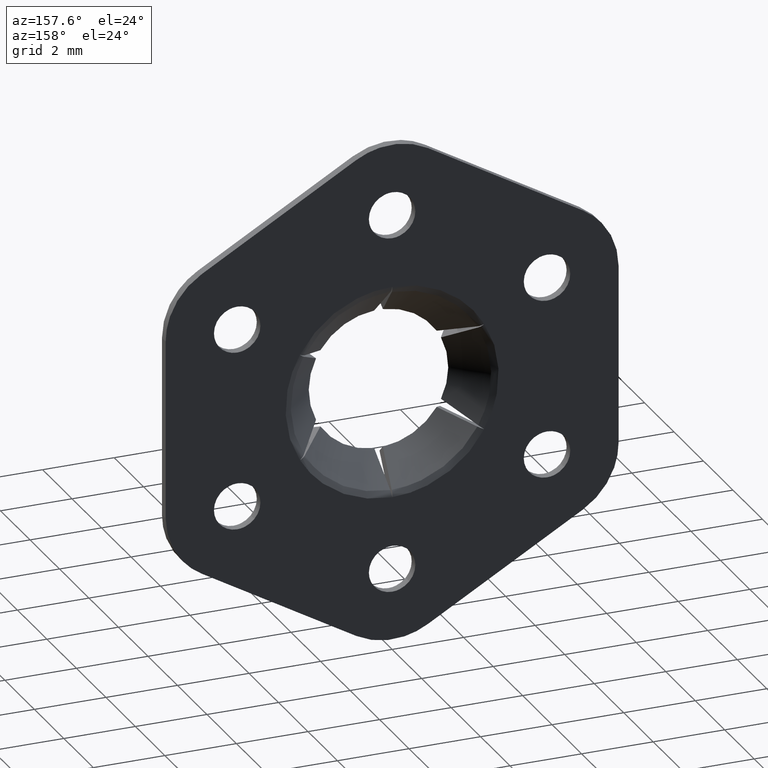
[diagram: clean part render]
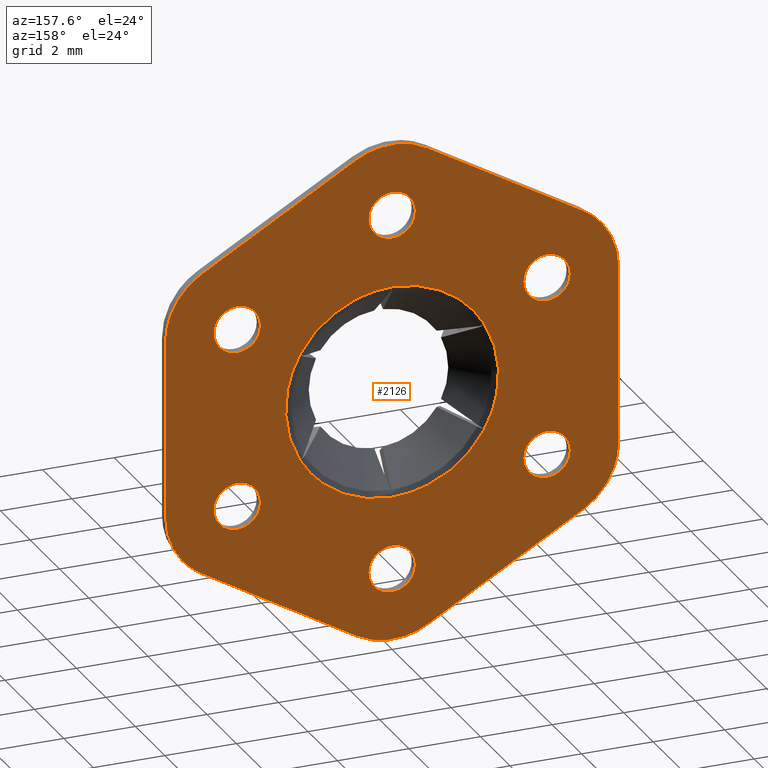
[diagram: same view with one face highlighted and labeled with its STEP entity id]
A machine part, auxiliary view. The second image highlights one B-rep face of the part: STEP entity #2126.
In plain terms, the highlighted face is a freeform B-spline surface patch.
Its self-contained STEP definition (entity closure, byte-faithful):
#23=CARTESIAN_POINT('',(4.980127018922179,0.0,2.500000163236781));
#24=VERTEX_POINT('',#23);
#25=CARTESIAN_POINT('',(4.809357311915749,2.035479E-012,2.939133668861077));
#26=VERTEX_POINT('',#25);
#27=CARTESIAN_POINT('',(4.980127018922179,0.0,2.500000163236781));
#28=CARTESIAN_POINT('',(4.980172819322952,3.259573E-013,2.570322075933524));
#29=CARTESIAN_POINT('',(4.964485724455772,7.681227E-013,2.665714664776037));
#30=CARTESIAN_POINT('',(4.904402876713827,1.460438E-012,2.815074539650879));
#31=CARTESIAN_POINT('',(4.853493884420349,1.812432E-012,2.891013563929832));
#32=CARTESIAN_POINT('',(4.809357311915749,2.035479E-012,2.939133668861077));
#33=B_SPLINE_CURVE_WITH_KNOTS('',3,(#27,#28,#29,#30,#31,#32),.UNSPECIFIED.,.F.,.U.,(4,1,1,4),(4.392452E-009,0.210942319725231,0.286274552754876,0.482149764923207),.UNSPECIFIED.);
#34=EDGE_CURVE('',#24,#26,#33,.T.);
#36=CARTESIAN_POINT('',(4.330127018922200,0.0,1.850000000000000));
#37=VERTEX_POINT('',#36);
#38=CARTESIAN_POINT('',(4.330127018922200,0.0,1.850000000000000));
#39=CARTESIAN_POINT('',(4.393943612441526,0.0,1.849973398800328));
#40=CARTESIAN_POINT('',(4.494964897387099,0.0,1.865001807567458));
#41=CARTESIAN_POINT('',(4.621336900206559,0.0,1.915552737009256));
#42=CARTESIAN_POINT('',(4.728475869426538,0.0,1.980653991998649));
#43=CARTESIAN_POINT('',(4.814836949278481,0.0,2.060874763959348));
#44=CARTESIAN_POINT('',(4.887248519578230,0.0,2.159794030874946));
#45=CARTESIAN_POINT('',(4.940725815325198,0.0,2.264407876457761));
#46=CARTESIAN_POINT('',(4.973543584710519,0.0,2.383007773683735));
#47=CARTESIAN_POINT('',(4.980127727920589,0.0,2.465434808204584));
#48=CARTESIAN_POINT('',(4.980127018922179,0.0,2.500000163236781));
#49=B_SPLINE_CURVE_WITH_KNOTS('',3,(#38,#39,#40,#41,#42,#43,#44,#45,#46,#47,#48),.UNSPECIFIED.,.F.,.U.,(4,1,1,1,1,1,1,1,4),(0.000000018778900,0.191440700863502,0.303117068795683,0.406816013105236,0.566344824788100,0.654092936143123,0.773744952453462,0.917326673894309,1.021024110873738),.UNSPECIFIED.);
#50=EDGE_CURVE('',#37,#24,#49,.T.);
#52=CARTESIAN_POINT('',(3.850896725928651,2.035479E-012,2.060866331138924));
#53=VERTEX_POINT('',#52);
#54=CARTESIAN_POINT('',(3.850896725928651,2.035479E-012,2.060866331138924));
#55=CARTESIAN_POINT('',(3.903943477723120,1.810169E-012,2.002870405256843));
#56=CARTESIAN_POINT('',(4.010944637113826,1.355693E-012,1.922072236097862));
#57=CARTESIAN_POINT('',(4.181378357821527,6.317940E-013,1.861167573291216));
#58=CARTESIAN_POINT('',(4.282414449593154,2.026540E-013,1.849993846030878));
#59=CARTESIAN_POINT('',(4.330127018922200,0.0,1.850000000000000));
#60=B_SPLINE_CURVE_WITH_KNOTS('',3,(#54,#55,#56,#57,#58,#59),.UNSPECIFIED.,.F.,.U.,(4,1,1,4),(5.974641E-009,0.235760169528303,0.395735542063126,0.538874181939689),.UNSPECIFIED.);
#61=EDGE_CURVE('',#53,#37,#60,.T.);
#134=CARTESIAN_POINT('',(4.330127018922200,0.0,3.150000000000000));
#135=VERTEX_POINT('',#134);
#136=CARTESIAN_POINT('',(4.809357311915749,2.035479E-012,2.939133668861077));
#137=CARTESIAN_POINT('',(4.771446997156005,1.874459E-012,2.980533101780329));
#138=CARTESIAN_POINT('',(4.699964367565766,1.570845E-012,3.040638557721811));
#139=CARTESIAN_POINT('',(4.590369526561397,1.105352E-012,3.098496102752863));
#140=CARTESIAN_POINT('',(4.473258317283968,6.079349E-013,3.138656828802147));
#141=CARTESIAN_POINT('',(4.386261561490840,2.384255E-013,3.150015921642574));
#142=CARTESIAN_POINT('',(4.330127018922200,0.0,3.150000000000000));
#143=B_SPLINE_CURVE_WITH_KNOTS('',3,(#136,#137,#138,#139,#140,#141,#142),.UNSPECIFIED.,.F.,.U.,(4,1,1,1,4),(5.974261E-009,0.168399101445964,0.277853834906452,0.370475086471678,0.538874181939691),.UNSPECIFIED.);
#144=EDGE_CURVE('',#26,#135,#143,.T.);
#184=CARTESIAN_POINT('',(3.680127018922221,0.0,2.499999836763220));
#185=VERTEX_POINT('',#184);
#186=CARTESIAN_POINT('',(3.680127018922221,0.0,2.499999836763220));
#187=CARTESIAN_POINT('',(3.680106001692644,2.677302E-013,2.442239826261723));
#188=CARTESIAN_POINT('',(3.692262500810855,6.867047E-013,2.351850442512182));
#189=CARTESIAN_POINT('',(3.746296559510227,1.390556E-012,2.200001804799360));
#190=CARTESIAN_POINT('',(3.803353804868452,1.795307E-012,2.112681030982155));
#191=CARTESIAN_POINT('',(3.850896725928651,2.035479E-012,2.060866331138924));
#192=B_SPLINE_CURVE_WITH_KNOTS('',3,(#186,#187,#188,#189,#190,#191),.UNSPECIFIED.,.F.,.U.,(4,1,1,4),(4.392489E-009,0.173272925132469,0.271207449585831,0.482149764923206),.UNSPECIFIED.);
#193=EDGE_CURVE('',#185,#53,#192,.T.);
#195=CARTESIAN_POINT('',(4.330127018922200,0.0,3.150000000000000));
#196=CARTESIAN_POINT('',(4.253012110528252,0.0,3.150052292918591));
#197=CARTESIAN_POINT('',(4.125424731724087,0.0,3.127021063610469));
#198=CARTESIAN_POINT('',(3.975257293904753,0.0,3.050239969148003));
#199=CARTESIAN_POINT('',(3.856999354344619,0.0,2.954418660074545));
#200=CARTESIAN_POINT('',(3.770135159362533,0.0,2.841682039234107));
#201=CARTESIAN_POINT('',(3.698821927363457,0.0,2.683438214227867));
#202=CARTESIAN_POINT('',(3.680084827560532,0.0,2.571796056926795));
#203=CARTESIAN_POINT('',(3.680127018922221,0.0,2.499999836763220));
#204=B_SPLINE_CURVE_WITH_KNOTS('',3,(#195,#196,#197,#198,#199,#200,#201,#202,#203),.UNSPECIFIED.,.F.,.U.,(4,1,1,1,1,1,4),(0.000000018782729,0.231325339214242,0.382884463216004,0.502540829995767,0.685998498556016,0.805652893126068,1.021024110873722),.UNSPECIFIED.);
#205=EDGE_CURVE('',#135,#185,#204,.T.);
#228=CARTESIAN_POINT('',(4.980127018922195,0.0,-2.499999836763219));
#229=VERTEX_POINT('',#228);
#230=CARTESIAN_POINT('',(4.809357311915765,2.035479E-012,-2.060866331138924));
#231=VERTEX_POINT('',#230);
#232=CARTESIAN_POINT('',(4.980127018922195,0.0,-2.499999836763219));
#233=CARTESIAN_POINT('',(4.980188991211064,3.608879E-013,-2.422142016910590));
#234=CARTESIAN_POINT('',(4.958205588266096,9.193818E-013,-2.301652757484972));
#235=CARTESIAN_POINT('',(4.886801284882448,1.590841E-012,-2.156792351033789));
#236=CARTESIAN_POINT('',(4.836504781183027,1.898182E-012,-2.090486817663585));
#237=CARTESIAN_POINT('',(4.809357311915765,2.035479E-012,-2.060866331138924));
#238=B_SPLINE_CURVE_WITH_KNOTS('',3,(#232,#233,#234,#235,#236,#237),.UNSPECIFIED.,.F.,.U.,(4,1,1,4),(4.392349E-009,0.233544237820783,0.361612322902816,0.482149764923206),.UNSPECIFIED.);
#239=EDGE_CURVE('',#229,#231,#238,.T.);
#241=CARTESIAN_POINT('',(4.330127018922216,0.0,-3.150000000000000));
#242=VERTEX_POINT('',#241);
#243=CARTESIAN_POINT('',(4.330127018922216,0.0,-3.150000000000000));
#244=CARTESIAN_POINT('',(4.393944221706852,0.0,-3.150027236263655));
#245=CARTESIAN_POINT('',(4.489645764979488,0.0,-3.135785352283381));
#246=CARTESIAN_POINT('',(4.623972305432466,0.0,-3.083967027925975));
#247=CARTESIAN_POINT('',(4.731015862469542,0.0,-3.018013549902450));
#248=CARTESIAN_POINT('',(4.836886102816760,0.0,-2.915974892477597));
#249=CARTESIAN_POINT('',(4.911389521383053,0.0,-2.801452350060326));
#250=CARTESIAN_POINT('',(4.966134807251615,0.0,-2.659521972923521));
#251=CARTESIAN_POINT('',(4.980151055046517,0.0,-2.561157209323600));
#252=CARTESIAN_POINT('',(4.980127018922195,0.0,-2.499999836763219));
#253=B_SPLINE_CURVE_WITH_KNOTS('',3,(#243,#244,#245,#246,#247,#248,#249,#250,#251,#252),.UNSPECIFIED.,.F.,.U.,(4,1,1,1,1,1,1,4),(0.000000018778407,0.191440700862996,0.287163830440622,0.430747980342440,0.566344824787957,0.725883285238950,0.837559397586677,1.021024110873739),.UNSPECIFIED.);
#254=EDGE_CURVE('',#242,#229,#253,.T.);
#256=CARTESIAN_POINT('',(3.850896725928668,2.035479E-012,-2.939133668861076));
#257=VERTEX_POINT('',#256);
#258=CARTESIAN_POINT('',(3.850896725928668,2.035479E-012,-2.939133668861076));
#259=CARTESIAN_POINT('',(3.879335850067438,1.914687E-012,-2.970174358639794));
#260=CARTESIAN_POINT('',(3.950659646301334,1.611747E-012,-3.034249271452272));
#261=CARTESIAN_POINT('',(4.061614121269874,1.140480E-012,-3.096557113811896));
#262=CARTESIAN_POINT('',(4.192608519233026,5.840951E-013,-3.139577012507993));
#263=CARTESIAN_POINT('',(4.276799714959488,2.265020E-013,-3.150012953154026));
#264=CARTESIAN_POINT('',(4.330127018922216,0.0,-3.150000000000000));
#265=B_SPLINE_CURVE_WITH_KNOTS('',3,(#258,#259,#260,#261,#262,#263,#264),.UNSPECIFIED.,.F.,.U.,(4,1,1,1,4),(5.975002E-009,0.126298454080897,0.286274548969578,0.378895637024377,0.538874181939689),.UNSPECIFIED.);
#266=EDGE_CURVE('',#257,#242,#265,.T.);
#339=CARTESIAN_POINT('',(4.330127018922216,0.0,-1.850000000000000));
#340=VERTEX_POINT('',#339);
#341=CARTESIAN_POINT('',(4.809357311915765,2.035479E-012,-2.060866331138924));
#342=CARTESIAN_POINT('',(4.777128134342178,1.898589E-012,-2.025684351089956));
#343=CARTESIAN_POINT('',(4.700630242010574,1.573673E-012,-1.958742133930721));
#344=CARTESIAN_POINT('',(4.540584141933095,8.938941E-013,-1.874230794345670));
#345=CARTESIAN_POINT('',(4.408723446698390,3.338299E-013,-1.849930178788505));
#346=CARTESIAN_POINT('',(4.330127018922216,0.0,-1.850000000000000));
#347=B_SPLINE_CURVE_WITH_KNOTS('',3,(#341,#342,#343,#344,#345,#346),.UNSPECIFIED.,.F.,.U.,(4,1,1,4),(5.975064E-009,0.143138645854867,0.303114018389503,0.538874181939690),.UNSPECIFIED.);
#348=EDGE_CURVE('',#231,#340,#347,.T.);
#388=CARTESIAN_POINT('',(3.680127018922236,0.0,-2.500000163236780));
#389=VERTEX_POINT('',#388);
#390=CARTESIAN_POINT('',(3.680127018922236,0.0,-2.500000163236780));
#391=CARTESIAN_POINT('',(3.680085536112750,3.259520E-013,-2.570320919348010));
#392=CARTESIAN_POINT('',(3.696176710327546,7.797703E-013,-2.668227508588785));
#393=CARTESIAN_POINT('',(3.757155085317206,1.470683E-012,-2.817284677752395));
#394=CARTESIAN_POINT('',(3.808458512756184,1.821012E-012,-2.892864622909406));
#395=CARTESIAN_POINT('',(3.850896725928668,2.035479E-012,-2.939133668861076));
#396=B_SPLINE_CURVE_WITH_KNOTS('',3,(#390,#391,#392,#393,#394,#395),.UNSPECIFIED.,.F.,.U.,(4,1,1,4),(4.392282E-009,0.210942319725159,0.293809630084970,0.482149764923209),.UNSPECIFIED.);
#397=EDGE_CURVE('',#389,#257,#396,.T.);
#399=CARTESIAN_POINT('',(4.330127018922216,0.0,-1.850000000000000));
#400=CARTESIAN_POINT('',(4.276947968822233,0.0,-1.849986830132845));
#401=CARTESIAN_POINT('',(4.173256557257727,0.0,-1.862797018575184));
#402=CARTESIAN_POINT('',(4.025544374374209,0.0,-1.918725037221774));
#403=CARTESIAN_POINT('',(3.910676844102262,0.0,-1.997541306760426));
#404=CARTESIAN_POINT('',(3.821831995039642,0.0,-2.089733238085434));
#405=CARTESIAN_POINT('',(3.758955769505115,0.0,-2.182594631143097));
#406=CARTESIAN_POINT('',(3.698375677283917,0.0,-2.319220316630406));
#407=CARTESIAN_POINT('',(3.680084592820350,0.0,-2.428203609653174));
#408=CARTESIAN_POINT('',(3.680127018922236,0.0,-2.500000163236780));
#409=B_SPLINE_CURVE_WITH_KNOTS('',3,(#399,#400,#401,#402,#403,#404,#405,#406,#407,#408),.UNSPECIFIED.,.F.,.U.,(4,1,1,1,1,1,1,4),(0.000000018783137,0.159534663353849,0.311094818722455,0.470630979926558,0.574325250557157,0.693976780803943,0.805652893126124,1.021024110873723),.UNSPECIFIED.);
#410=EDGE_CURVE('',#340,#389,#409,.T.);
#433=CARTESIAN_POINT('',(0.649999999999979,0.0,-4.999999836763220));
#434=VERTEX_POINT('',#433);
#435=CARTESIAN_POINT('',(0.479230292993549,2.035465E-012,-4.560866331138923));
#436=VERTEX_POINT('',#435);
#437=CARTESIAN_POINT('',(0.649999999999979,0.0,-4.999999836763220));
#438=CARTESIAN_POINT('',(0.650008423369615,2.211598E-013,-4.952286552478481));
#439=CARTESIAN_POINT('',(0.640000368785173,6.401693E-013,-4.861888951114753));
#440=CARTESIAN_POINT('',(0.589404509897320,1.351068E-012,-4.708518810954898));
#441=CARTESIAN_POINT('',(0.526768753002489,1.795285E-012,-4.612683037637351));
#442=CARTESIAN_POINT('',(0.479230292993549,2.035465E-012,-4.560866331138923));
#443=B_SPLINE_CURVE_WITH_KNOTS('',3,(#437,#438,#439,#440,#441,#442),.UNSPECIFIED.,.F.,.U.,(4,1,1,4),(4.392297E-009,0.143138701154913,0.271207449585726,0.482149764923210),.UNSPECIFIED.);
#444=EDGE_CURVE('',#434,#436,#443,.T.);
#446=CARTESIAN_POINT('',(0.0,0.0,-5.650000000000000));
#447=VERTEX_POINT('',#446);
#448=CARTESIAN_POINT('',(0.0,0.0,-5.650000000000000));
#449=CARTESIAN_POINT('',(0.063815023284216,0.0,-5.650025220793563));
#450=CARTESIAN_POINT('',(0.178135011454107,0.0,-5.633027580866302));
#451=CARTESIAN_POINT('',(0.318008146574790,0.0,-5.572039856208310));
#452=CARTESIAN_POINT('',(0.431467628535057,0.0,-5.492130598800961));
#453=CARTESIAN_POINT('',(0.525005459434568,0.0,-5.392680538057301));
#454=CARTESIAN_POINT('',(0.589656439504286,0.0,-5.281737603308858));
#455=CARTESIAN_POINT('',(0.637139277810600,0.0,-5.151543854778184));
#456=CARTESIAN_POINT('',(0.650027430911220,0.0,-5.061158381440956));
#457=CARTESIAN_POINT('',(0.649999999999979,0.0,-4.999999836763220));
#458=B_SPLINE_CURVE_WITH_KNOTS('',3,(#448,#449,#450,#451,#452,#453,#454,#455,#456,#457),.UNSPECIFIED.,.F.,.U.,(4,1,1,1,1,1,1,4),(0.000000018780778,0.191440700864921,0.343000770743689,0.454679515621571,0.606229140899984,0.749814273445504,0.837559397586994,1.021024110873731),.UNSPECIFIED.);
#459=EDGE_CURVE('',#447,#434,#458,.T.);
#461=CARTESIAN_POINT('',(-0.479230292993549,2.035479E-012,-5.439133668861076));
#462=VERTEX_POINT('',#461);
#463=CARTESIAN_POINT('',(-0.479230292993549,2.035479E-012,-5.439133668861076));
#464=CARTESIAN_POINT('',(-0.437533501956871,1.858377E-012,-5.484679603358519));
#465=CARTESIAN_POINT('',(-0.365143888764122,1.550910E-012,-5.543943935924473));
#466=CARTESIAN_POINT('',(-0.242394443208511,1.029544E-012,-5.606732621160969));
#467=CARTESIAN_POINT('',(-0.129104804158366,5.483589E-013,-5.641520365397864));
#468=CARTESIAN_POINT('',(-0.042099367895529,1.788126E-013,-5.650004697425557));
#469=CARTESIAN_POINT('',(0.0,0.0,-5.650000000000000));
#470=B_SPLINE_CURVE_WITH_KNOTS('',3,(#463,#464,#465,#466,#467,#468,#469),.UNSPECIFIED.,.F.,.U.,(4,1,1,1,4),(5.974141E-009,0.185239017503932,0.277853834906387,0.412575733837094,0.538874181939693),.UNSPECIFIED.);
#471=EDGE_CURVE('',#462,#447,#470,.T.);
#543=CARTESIAN_POINT('',(0.0,0.0,-4.350000000000000));
#544=VERTEX_POINT('',#543);
#545=CARTESIAN_POINT('',(0.479230292993549,2.035465E-012,-4.560866331138923));
#546=CARTESIAN_POINT('',(0.433744479387006,1.842270E-012,-4.511177934205013));
#547=CARTESIAN_POINT('',(0.353789963164069,1.502674E-012,-4.447434111435795));
#548=CARTESIAN_POINT('',(0.223912161837360,9.510361E-013,-4.386233653128629));
#549=CARTESIAN_POINT('',(0.115072062710664,4.887527E-013,-4.356631448995800));
#550=CARTESIAN_POINT('',(0.036485893309442,1.549688E-013,-4.349997711731738));
#551=CARTESIAN_POINT('',(0.0,0.0,-4.350000000000000));
#552=B_SPLINE_CURVE_WITH_KNOTS('',3,(#545,#546,#547,#548,#549,#550,#551),.UNSPECIFIED.,.F.,.U.,(4,1,1,1,4),(5.974519E-009,0.202077918414338,0.303114018389373,0.429415638874715,0.538874181939691),.UNSPECIFIED.);
#553=EDGE_CURVE('',#436,#544,#552,.T.);
#592=CARTESIAN_POINT('',(-0.649999999999979,0.0,-5.000000163236780));
#593=VERTEX_POINT('',#592);
#594=CARTESIAN_POINT('',(-0.649999999999979,0.0,-5.000000163236780));
#595=CARTESIAN_POINT('',(-0.650033184268499,3.026598E-013,-5.065295876135430));
#596=CARTESIAN_POINT('',(-0.633583754002724,8.030753E-013,-5.173255321991309));
#597=CARTESIAN_POINT('',(-0.570713157688592,1.492604E-012,-5.322013891884883));
#598=CARTESIAN_POINT('',(-0.514866278549661,1.855293E-012,-5.400260427522060));
#599=CARTESIAN_POINT('',(-0.479230292993549,2.035479E-012,-5.439133668861076));
#600=B_SPLINE_CURVE_WITH_KNOTS('',3,(#594,#595,#596,#597,#598,#599),.UNSPECIFIED.,.F.,.U.,(4,1,1,4),(4.392399E-009,0.195875216556383,0.323943787210634,0.482149764923208),.UNSPECIFIED.);
#601=EDGE_CURVE('',#593,#462,#600,.T.);
#603=CARTESIAN_POINT('',(0.0,0.0,-4.350000000000000));
#604=CARTESIAN_POINT('',(-0.066476968338233,0.0,-4.349966005813619));
#605=CARTESIAN_POINT('',(-0.180786130894938,0.0,-4.367701652183531));
#606=CARTESIAN_POINT('',(-0.334870591114025,0.0,-4.435993857622627));
#607=CARTESIAN_POINT('',(-0.445731268075669,0.0,-4.520351508365737));
#608=CARTESIAN_POINT('',(-0.531139021337826,0.0,-4.619376146311014));
#609=CARTESIAN_POINT('',(-0.589562915414088,0.0,-4.718216757957176));
#610=CARTESIAN_POINT('',(-0.636986426192101,0.0,-4.845794169785260));
#611=CARTESIAN_POINT('',(-0.650019989913678,0.0,-4.941502689056970));
#612=CARTESIAN_POINT('',(-0.649999999999979,0.0,-5.000000163236780));
#613=B_SPLINE_CURVE_WITH_KNOTS('',3,(#603,#604,#605,#606,#607,#608,#609,#610,#611,#612),.UNSPECIFIED.,.F.,.U.,(4,1,1,1,1,1,1,4),(0.000000018781896,0.199418732907885,0.343000770744471,0.502540829995531,0.614209504559535,0.733860823468435,0.845537679811663,1.021024110873731),.UNSPECIFIED.);
#614=EDGE_CURVE('',#544,#593,#613,.T.);
#637=CARTESIAN_POINT('',(-3.680127018922221,0.0,-2.499999836763220));
#638=VERTEX_POINT('',#637);
#639=CARTESIAN_POINT('',(-3.850896725928651,2.035479E-012,-2.060866331138924));
#640=VERTEX_POINT('',#639);
#641=CARTESIAN_POINT('',(-3.680127018922221,0.0,-2.499999836763220));
#642=CARTESIAN_POINT('',(-3.680120197715320,2.211603E-013,-2.452286807683829));
#643=CARTESIAN_POINT('',(-3.690679252235329,6.634583E-013,-2.356865607516550));
#644=CARTESIAN_POINT('',(-3.743114345620196,1.372439E-012,-2.203910491937008));
#645=CARTESIAN_POINT('',(-3.806762249965601,1.812434E-012,-2.108986151738037));
#646=CARTESIAN_POINT('',(-3.850896725928651,2.035479E-012,-2.060866331138924));
#647=B_SPLINE_CURVE_WITH_KNOTS('',3,(#641,#642,#643,#644,#645,#646),.UNSPECIFIED.,.F.,.U.,(4,1,1,4),(4.392420E-009,0.143138701154989,0.286274552754879,0.482149764923205),.UNSPECIFIED.);
#648=EDGE_CURVE('',#638,#640,#647,.T.);
#650=CARTESIAN_POINT('',(-4.330127018922200,0.0,-3.150000000000000));
#651=VERTEX_POINT('',#650);
#652=CARTESIAN_POINT('',(-4.330127018922200,0.0,-3.150000000000000));
#653=CARTESIAN_POINT('',(-4.279607870487335,0.0,-3.150010929741651));
#654=CARTESIAN_POINT('',(-4.191869006585980,0.0,-3.139717453321052));
#655=CARTESIAN_POINT('',(-4.080372376814060,0.0,-3.102879846466941));
#656=CARTESIAN_POINT('',(-3.978326219839794,0.0,-3.050734750072447));
#657=CARTESIAN_POINT('',(-3.886784709680978,0.0,-2.981081186481494));
#658=CARTESIAN_POINT('',(-3.791313408358248,0.0,-2.873126579718929));
#659=CARTESIAN_POINT('',(-3.705912729692541,0.0,-2.717990320102046));
#660=CARTESIAN_POINT('',(-3.680055050626259,0.0,-2.579776294634421));
#661=CARTESIAN_POINT('',(-3.680127018922221,0.0,-2.499999836763220));
#662=B_SPLINE_CURVE_WITH_KNOTS('',3,(#652,#653,#654,#655,#656,#657,#658,#659,#660,#661),.UNSPECIFIED.,.F.,.U.,(4,1,1,1,1,1,1,4),(0.000000018782525,0.151555804448762,0.263232972859720,0.350979503587851,0.494563003337421,0.606229140900759,0.781721904916428,1.021024110873723),.UNSPECIFIED.);
#663=EDGE_CURVE('',#651,#638,#662,.T.);
#665=CARTESIAN_POINT('',(-4.809357311915749,2.035465E-012,-2.939133668861077));
#666=VERTEX_POINT('',#665);
#667=CARTESIAN_POINT('',(-4.809357311915749,2.035465E-012,-2.939133668861077));
#668=CARTESIAN_POINT('',(-4.777128275683619,1.898576E-012,-2.974315582746929));
#669=CARTESIAN_POINT('',(-4.698504745374192,1.564634E-012,-3.043118532689795));
#670=CARTESIAN_POINT('',(-4.537787605668756,8.820097E-013,-3.126662181994866));
#671=CARTESIAN_POINT('',(-4.405912536548606,3.218886E-013,-3.150056702302393));
#672=CARTESIAN_POINT('',(-4.330127018922200,0.0,-3.150000000000000));
#673=B_SPLINE_CURVE_WITH_KNOTS('',3,(#667,#668,#669,#670,#671,#672),.UNSPECIFIED.,.F.,.U.,(4,1,1,4),(5.974327E-009,0.143138645854451,0.311535492394865,0.538874181939691),.UNSPECIFIED.);
#674=EDGE_CURVE('',#666,#651,#673,.T.);
#747=CARTESIAN_POINT('',(-4.330127018922200,0.0,-1.850000000000000));
#748=VERTEX_POINT('',#747);
#749=CARTESIAN_POINT('',(-3.850896725928651,2.035479E-012,-2.060866331138924));
#750=CARTESIAN_POINT('',(-3.896381758640699,1.842287E-012,-2.011177630675395));
#751=CARTESIAN_POINT('',(-3.985223026077269,1.464943E-012,-1.940350451292504));
#752=CARTESIAN_POINT('',(-4.150522116641677,7.628526E-013,-1.867614989655107));
#753=CARTESIAN_POINT('',(-4.262764076895192,2.861169E-013,-1.849964654666579));
#754=CARTESIAN_POINT('',(-4.330127018922200,0.0,-1.850000000000000));
#755=B_SPLINE_CURVE_WITH_KNOTS('',3,(#749,#750,#751,#752,#753,#754),.UNSPECIFIED.,.F.,.U.,(4,1,1,4),(5.975162E-009,0.202077918414613,0.336796269502777,0.538874181939690),.UNSPECIFIED.);
#756=EDGE_CURVE('',#640,#748,#755,.T.);
#797=CARTESIAN_POINT('',(-4.980127018922180,0.0,-2.500000163236780));
#798=VERTEX_POINT('',#797);
#799=CARTESIAN_POINT('',(-4.980127018922180,0.0,-2.500000163236780));
#800=CARTESIAN_POINT('',(-4.980135679931276,2.211592E-013,-2.547713318842952));
#801=CARTESIAN_POINT('',(-4.970679033841931,6.168839E-013,-2.633087418438984));
#802=CARTESIAN_POINT('',(-4.921927267359919,1.329719E-012,-2.786875319344228));
#803=CARTESIAN_POINT('',(-4.860296255959557,1.778140E-012,-2.883618237266349));
#804=CARTESIAN_POINT('',(-4.809357311915749,2.035465E-012,-2.939133668861077));
#805=B_SPLINE_CURVE_WITH_KNOTS('',3,(#799,#800,#801,#802,#803,#804),.UNSPECIFIED.,.F.,.U.,(4,1,1,4),(4.392199E-009,0.143138701154828,0.256140839540723,0.482149764923204),.UNSPECIFIED.);
#806=EDGE_CURVE('',#798,#666,#805,.T.);
#808=CARTESIAN_POINT('',(-4.330127018922200,0.0,-1.850000000000000));
#809=CARTESIAN_POINT('',(-4.383306040013327,0.0,-1.849986767140554));
#810=CARTESIAN_POINT('',(-4.486997860251977,0.0,-1.862796769441717));
#811=CARTESIAN_POINT('',(-4.614677171288983,0.0,-1.911145853098217));
#812=CARTESIAN_POINT('',(-4.716813316531903,0.0,-1.974092797651517));
#813=CARTESIAN_POINT('',(-4.801688610817760,0.0,-2.047299336767484));
#814=CARTESIAN_POINT('',(-4.873474157699417,0.0,-2.136994041059657));
#815=CARTESIAN_POINT('',(-4.930707750504640,0.0,-2.242505638592845));
#816=CARTESIAN_POINT('',(-4.970095934691418,0.0,-2.361740573988155));
#817=CARTESIAN_POINT('',(-4.980136328461938,0.0,-2.452139405650866));
#818=CARTESIAN_POINT('',(-4.980127018922180,0.0,-2.500000163236780));
#819=B_SPLINE_CURVE_WITH_KNOTS('',3,(#808,#809,#810,#811,#812,#813,#814,#815,#816,#817,#818),.UNSPECIFIED.,.F.,.U.,(4,1,1,1,1,1,1,1,4),(0.000000018778985,0.159534663350303,0.311094818719450,0.406816013104995,0.518483109550256,0.646113759268185,0.749814273444951,0.877443242281231,1.021024110873739),.UNSPECIFIED.);
#820=EDGE_CURVE('',#748,#798,#819,.T.);
#843=CARTESIAN_POINT('',(-3.680127018922221,0.0,2.500000163236781));
#844=VERTEX_POINT('',#843);
#845=CARTESIAN_POINT('',(-3.850896725928651,2.035479E-012,2.939133668861077));
#846=VERTEX_POINT('',#845);
#847=CARTESIAN_POINT('',(-3.680127018922221,0.0,2.500000163236781));
#848=CARTESIAN_POINT('',(-3.680126826250477,1.513162E-013,2.532645072831082));
#849=CARTESIAN_POINT('',(-3.686377334146418,5.354285E-013,2.615513294370316));
#850=CARTESIAN_POINT('',(-3.728976980823902,1.258953E-012,2.771606122981601));
#851=CARTESIAN_POINT('',(-3.798252913833863,1.769600E-012,2.881773027187848));
#852=CARTESIAN_POINT('',(-3.850896725928651,2.035479E-012,2.939133668861077));
#853=B_SPLINE_CURVE_WITH_KNOTS('',3,(#847,#848,#849,#850,#851,#852),.UNSPECIFIED.,.F.,.U.,(4,1,1,4),(4.392171E-009,0.097936187891378,0.248605531491666,0.482149764923208),.UNSPECIFIED.);
#854=EDGE_CURVE('',#844,#846,#853,.T.);
#856=CARTESIAN_POINT('',(-4.330127018922200,0.0,1.850000000000000));
#857=VERTEX_POINT('',#856);
#858=CARTESIAN_POINT('',(-4.330127018922200,0.0,1.850000000000000));
#859=CARTESIAN_POINT('',(-4.263650866062014,0.0,1.849968642827356));
#860=CARTESIAN_POINT('',(-4.149338525907311,0.0,1.867696297463179));
#861=CARTESIAN_POINT('',(-4.005044644144509,0.0,1.931664824281779));
#862=CARTESIAN_POINT('',(-3.903278858481713,0.0,2.005229781451142));
#863=CARTESIAN_POINT('',(-3.814421207603776,0.0,2.097410736793984));
#864=CARTESIAN_POINT('',(-3.747904164604107,0.0,2.201039387735926));
#865=CARTESIAN_POINT('',(-3.694122191726409,0.0,2.340479684443622));
#866=CARTESIAN_POINT('',(-3.680101512605011,0.0,2.438841924900070));
#867=CARTESIAN_POINT('',(-3.680127018922221,0.0,2.500000163236781));
#868=B_SPLINE_CURVE_WITH_KNOTS('',3,(#858,#859,#860,#861,#862,#863,#864,#865,#866,#867),.UNSPECIFIED.,.F.,.U.,(4,1,1,1,1,1,1,4),(0.000000018782180,0.199418732908128,0.343000770744707,0.470630979926265,0.574325250556961,0.725883285240054,0.837559397587364,1.021024110873723),.UNSPECIFIED.);
#869=EDGE_CURVE('',#857,#844,#868,.T.);
#871=CARTESIAN_POINT('',(-4.809357311915749,2.035479E-012,2.060866331138924));
#872=VERTEX_POINT('',#871);
#873=CARTESIAN_POINT('',(-4.809357311915749,2.035479E-012,2.060866331138924));
#874=CARTESIAN_POINT('',(-4.780918328831833,1.914688E-012,2.029825117307011));
#875=CARTESIAN_POINT('',(-4.711691283715077,1.620653E-012,1.967638609732726));
#876=CARTESIAN_POINT('',(-4.596317942454747,1.130617E-012,1.901859249753321));
#877=CARTESIAN_POINT('',(-4.464841587395258,5.721857E-013,1.859626060517609));
#878=CARTESIAN_POINT('',(-4.377840560285528,2.026582E-013,1.849990627074593));
#879=CARTESIAN_POINT('',(-4.330127018922200,0.0,1.850000000000000));
#880=B_SPLINE_CURVE_WITH_KNOTS('',3,(#873,#874,#875,#876,#877,#878,#879),.UNSPECIFIED.,.F.,.U.,(4,1,1,1,4),(5.975279E-009,0.126298454081047,0.277853834906792,0.395735542063202,0.538874181939689),.UNSPECIFIED.);
#881=EDGE_CURVE('',#872,#857,#880,.T.);
#954=CARTESIAN_POINT('',(-4.330127018922200,0.0,3.150000000000000));
#955=VERTEX_POINT('',#954);
#956=CARTESIAN_POINT('',(-3.850896725928651,2.035479E-012,2.939133668861077));
#957=CARTESIAN_POINT('',(-3.879334965560501,1.914691E-012,2.970176083917153));
#958=CARTESIAN_POINT('',(-3.944371248524385,1.638456E-012,3.028589782805305));
#959=CARTESIAN_POINT('',(-4.046555630069245,1.204439E-012,3.088615450395728));
#960=CARTESIAN_POINT('',(-4.175777400174439,6.555835E-013,3.136694891180107));
#961=CARTESIAN_POINT('',(-4.268376988082884,2.622767E-013,3.150028507514003));
#962=CARTESIAN_POINT('',(-4.330127018922200,0.0,3.150000000000000));
#963=B_SPLINE_CURVE_WITH_KNOTS('',3,(#956,#957,#958,#959,#960,#961,#962),.UNSPECIFIED.,.F.,.U.,(4,1,1,1,4),(5.974615E-009,0.126298454080574,0.261020353009394,0.353635170413818,0.538874181939689),.UNSPECIFIED.);
#964=EDGE_CURVE('',#846,#955,#963,.T.);
#1004=CARTESIAN_POINT('',(-4.980127018922178,0.0,2.499999836763220));
#1005=VERTEX_POINT('',#1004);
#1006=CARTESIAN_POINT('',(-4.980127018922178,0.0,2.499999836763220));
#1007=CARTESIAN_POINT('',(-4.980195547271932,3.608961E-013,2.422140254405051));
#1008=CARTESIAN_POINT('',(-4.959572599330711,8.844606E-013,2.309186641384227));
#1009=CARTESIAN_POINT('',(-4.890813166576367,1.560529E-012,2.163331974958842));
#1010=CARTESIAN_POINT('',(-4.841598586654004,1.872450E-012,2.096038188109043));
#1011=CARTESIAN_POINT('',(-4.809357311915749,2.035479E-012,2.060866331138924));
#1012=B_SPLINE_CURVE_WITH_KNOTS('',3,(#1006,#1007,#1008,#1009,#1010,#1011),.UNSPECIFIED.,.F.,.U.,(4,1,1,4),(4.392259E-009,0.233544237820698,0.339011068156922,0.482149764923207),.UNSPECIFIED.);
#1013=EDGE_CURVE('',#1005,#872,#1012,.T.);
#1015=CARTESIAN_POINT('',(-4.330127018922200,0.0,3.150000000000000));
#1016=CARTESIAN_POINT('',(-4.407242709465164,0.0,3.150052028342836));
#1017=CARTESIAN_POINT('',(-4.529511509903621,0.0,3.127980459439501));
#1018=CARTESIAN_POINT('',(-4.666034542144919,0.0,3.060269019756666));
#1019=CARTESIAN_POINT('',(-4.758494670121150,0.0,2.992574038856256));
#1020=CARTESIAN_POINT('',(-4.826046235105982,0.0,2.924187714232144));
#1021=CARTESIAN_POINT('',(-4.888466218511553,0.0,2.837828617986040));
#1022=CARTESIAN_POINT('',(-4.935860625792469,0.0,2.745100863063282));
#1023=CARTESIAN_POINT('',(-4.971492771088585,0.0,2.627622820455112));
#1024=CARTESIAN_POINT('',(-4.980134342718316,0.0,2.545200840535139));
#1025=CARTESIAN_POINT('',(-4.980127018922178,0.0,2.499999836763220));
#1026=B_SPLINE_CURVE_WITH_KNOTS('',3,(#1015,#1016,#1017,#1018,#1019,#1020,#1021,#1022,#1023,#1024,#1025),.UNSPECIFIED.,.F.,.U.,(4,1,1,1,1,1,1,1,4),(0.000000018778769,0.231325339211331,0.366932439118636,0.454679515620350,0.574325250555249,0.654092936142978,0.773744952453397,0.885422419102923,1.021024110873738),.UNSPECIFIED.);
#1027=EDGE_CURVE('',#955,#1005,#1026,.T.);
#1050=CARTESIAN_POINT('',(0.649999999999980,0.0,5.000000163236781));
#1051=VERTEX_POINT('',#1050);
#1052=CARTESIAN_POINT('',(0.479230292993549,2.035465E-012,5.439133668861077));
#1053=VERTEX_POINT('',#1052);
#1054=CARTESIAN_POINT('',(0.649999999999980,0.0,5.000000163236781));
#1055=CARTESIAN_POINT('',(0.650024365932875,2.910107E-013,5.062783164530856));
#1056=CARTESIAN_POINT('',(0.636065064788106,7.332433E-013,5.158190935946337));
#1057=CARTESIAN_POINT('',(0.578513466442606,1.431082E-012,5.308743486198226));
#1058=CARTESIAN_POINT('',(0.523369458287285,1.812424E-012,5.391014690884476));
#1059=CARTESIAN_POINT('',(0.479230292993549,2.035465E-012,5.439133668861077));
#1060=B_SPLINE_CURVE_WITH_KNOTS('',3,(#1054,#1055,#1056,#1057,#1058,#1059),.UNSPECIFIED.,.F.,.U.,(4,1,1,4),(4.392152E-009,0.188340139232155,0.286274552754873,0.482149764923208),.UNSPECIFIED.);
#1061=EDGE_CURVE('',#1051,#1053,#1060,.T.);
#1063=CARTESIAN_POINT('',(0.0,0.0,4.350000000000000));
#1064=VERTEX_POINT('',#1063);
#1065=CARTESIAN_POINT('',(0.0,0.0,4.350000000000000));
#1066=CARTESIAN_POINT('',(0.053177560295465,0.0,4.349989854561512));
#1067=CARTESIAN_POINT('',(0.170171830864856,0.0,4.364424114815066));
#1068=CARTESIAN_POINT('',(0.304266780844533,0.0,4.419951630989249));
#1069=CARTESIAN_POINT('',(0.409689440748383,0.0,4.492319502981864));
#1070=CARTESIAN_POINT('',(0.501605546790641,0.0,4.577669600641325));
#1071=CARTESIAN_POINT('',(0.578389490959285,0.0,4.691071279793185));
#1072=CARTESIAN_POINT('',(0.636005787414621,0.0,4.840479450817742));
#1073=CARTESIAN_POINT('',(0.650024222587203,0.0,4.938842636945773));
#1074=CARTESIAN_POINT('',(0.649999999999980,0.0,5.000000163236781));
#1075=B_SPLINE_CURVE_WITH_KNOTS('',3,(#1065,#1066,#1067,#1068,#1069,#1070,#1071,#1072,#1073,#1074),.UNSPECIFIED.,.F.,.U.,(4,1,1,1,1,1,1,4),(0.000000018780601,0.159534663351783,0.350979503586620,0.430747980343689,0.542413522646361,0.725883285239581,0.837559397587032,1.021024110873731),.UNSPECIFIED.);
#1076=EDGE_CURVE('',#1064,#1051,#1075,.T.);
#1078=CARTESIAN_POINT('',(-0.479230292993549,2.035465E-012,4.560866331138923));
#1079=VERTEX_POINT('',#1078);
#1080=CARTESIAN_POINT('',(-0.479230292993549,2.035465E-012,4.560866331138923));
#1081=CARTESIAN_POINT('',(-0.431855231950183,1.834246E-012,4.509098629673009));
#1082=CARTESIAN_POINT('',(-0.351397730955659,1.492513E-012,4.445823775775156));
#1083=CARTESIAN_POINT('',(-0.221190501600817,9.394762E-013,4.385494038775574));
#1084=CARTESIAN_POINT('',(-0.115072563984752,4.887549E-013,4.356630043639954));
#1085=CARTESIAN_POINT('',(-0.036485734798186,1.549681E-013,4.349998291480172));
#1086=CARTESIAN_POINT('',(0.0,0.0,4.350000000000000));
#1087=B_SPLINE_CURVE_WITH_KNOTS('',3,(#1080,#1081,#1082,#1083,#1084,#1085,#1086),.UNSPECIFIED.,.F.,.U.,(4,1,1,1,4),(5.974857E-009,0.210499648724068,0.303114018389532,0.429415638874794,0.538874181939687),.UNSPECIFIED.);
#1088=EDGE_CURVE('',#1079,#1064,#1087,.T.);
#1161=CARTESIAN_POINT('',(0.0,0.0,5.650000000000000));
#1162=VERTEX_POINT('',#1161);
#1163=CARTESIAN_POINT('',(0.479230292993549,2.035465E-012,5.439133668861077));
#1164=CARTESIAN_POINT('',(0.443209485030934,1.882471E-012,5.478453744471652));
#1165=CARTESIAN_POINT('',(0.352826616197338,1.498582E-012,5.555519738729323));
#1166=CARTESIAN_POINT('',(0.188038762877972,7.986688E-013,5.631882540158014));
#1167=CARTESIAN_POINT('',(0.061746656172758,2.622604E-013,5.650017676695429));
#1168=CARTESIAN_POINT('',(0.0,0.0,5.650000000000000));
#1169=B_SPLINE_CURVE_WITH_KNOTS('',3,(#1163,#1164,#1165,#1166,#1167,#1168),.UNSPECIFIED.,.F.,.U.,(4,1,1,4),(5.974299E-009,0.159978550892040,0.353635170413704,0.538874181939692),.UNSPECIFIED.);
#1170=EDGE_CURVE('',#1053,#1162,#1169,.T.);
#1208=CARTESIAN_POINT('',(-0.649999999999979,0.0,4.999999836763220));
#1209=VERTEX_POINT('',#1208);
#1210=CARTESIAN_POINT('',(-0.649999999999979,0.0,4.999999836763220));
#1211=CARTESIAN_POINT('',(-0.650027744248675,2.910136E-013,4.937216220443998));
#1212=CARTESIAN_POINT('',(-0.636795585327057,7.099607E-013,4.846832087152782));
#1213=CARTESIAN_POINT('',(-0.581048631131039,1.410302E-012,4.695739740064787));
#1214=CARTESIAN_POINT('',(-0.526769508290147,1.795280E-012,4.612684102433181));
#1215=CARTESIAN_POINT('',(-0.479230292993549,2.035465E-012,4.560866331138923));
#1216=B_SPLINE_CURVE_WITH_KNOTS('',3,(#1210,#1211,#1212,#1213,#1214,#1215),.UNSPECIFIED.,.F.,.U.,(4,1,1,4),(4.392154E-009,0.188340139232062,0.271207449585650,0.482149764923206),.UNSPECIFIED.);
#1217=EDGE_CURVE('',#1209,#1079,#1216,.T.);
#1219=CARTESIAN_POINT('',(0.0,0.0,5.650000000000000));
#1220=CARTESIAN_POINT('',(-0.066476855568167,0.0,5.650035357390486));
#1221=CARTESIAN_POINT('',(-0.180787571138275,0.0,5.632299706067111));
#1222=CARTESIAN_POINT('',(-0.325080625015502,0.0,5.568334318963451));
#1223=CARTESIAN_POINT('',(-0.448515442741643,0.0,5.479131222491344));
#1224=CARTESIAN_POINT('',(-0.549526123246987,0.0,5.360573746149273));
#1225=CARTESIAN_POINT('',(-0.629520004743912,0.0,5.194073429725729));
#1226=CARTESIAN_POINT('',(-0.650045444535404,0.0,5.071795463557521));
#1227=CARTESIAN_POINT('',(-0.649999999999979,0.0,4.999999836763220));
#1228=B_SPLINE_CURVE_WITH_KNOTS('',3,(#1219,#1220,#1221,#1222,#1223,#1224,#1225,#1226,#1227),.UNSPECIFIED.,.F.,.U.,(4,1,1,1,1,1,4),(0.000000018780380,0.199418732906689,0.343000770743486,0.470630979925226,0.654092936143618,0.805652893125613,1.021024110873732),.UNSPECIFIED.);
#1229=EDGE_CURVE('',#1162,#1209,#1228,.T.);
#1378=CARTESIAN_POINT('',(2.842171E-014,0.0,-2.976776695317100));
#1379=VERTEX_POINT('',#1378);
#1389=CARTESIAN_POINT('',(-2.577964239538090,0.0,-1.488388347658600));
#1390=VERTEX_POINT('',#1389);
#1391=CARTESIAN_POINT('',(-2.577964239538090,0.0,-1.488388347658600));
#1392=CARTESIAN_POINT('',(-2.496794158254641,0.0,-1.628999916628731));
#1393=CARTESIAN_POINT('',(-2.311367414200901,0.0,-1.896890372156776));
#1394=CARTESIAN_POINT('',(-1.954515884414944,0.0,-2.265636327030067));
#1395=CARTESIAN_POINT('',(-1.564621626757128,0.0,-2.547449179401177));
#1396=CARTESIAN_POINT('',(-1.172211759670378,0.0,-2.744949089108115));
#1397=CARTESIAN_POINT('',(-0.788768863166515,0.0,-2.880388844008242));
#1398=CARTESIAN_POINT('',(-0.397777262392143,0.0,-2.959825615038944));
#1399=CARTESIAN_POINT('',(-0.121767575380713,0.0,-2.976778192879953));
#1400=CARTESIAN_POINT('',(2.842171E-014,0.0,-2.976776695317100));
#1401=B_SPLINE_CURVE_WITH_KNOTS('',3,(#1391,#1392,#1393,#1394,#1395,#1396,#1397,#1398,#1399,#1400),.UNSPECIFIED.,.F.,.U.,(4,1,1,1,1,1,1,4),(3.445439E-009,0.487074803019400,0.974151547385193,1.534289428408912,1.923945438625371,2.289253702563691,2.751977501904158,3.117281959204614),.UNSPECIFIED.);
#1402=EDGE_CURVE('',#1390,#1379,#1401,.T.);
#1434=CARTESIAN_POINT('',(2.577964239538090,0.0,-1.488388347658600));
#1435=VERTEX_POINT('',#1434);
#1445=CARTESIAN_POINT('',(2.842171E-014,0.0,-2.976776695317100));
#1446=CARTESIAN_POINT('',(0.227305666847590,0.0,-2.976825566480928));
#1447=CARTESIAN_POINT('',(0.600706142955520,0.0,-2.933786029945515));
#1448=CARTESIAN_POINT('',(1.105744102396960,0.0,-2.776052195049144));
#1449=CARTESIAN_POINT('',(1.500885712562122,0.0,-2.583199034411650));
#1450=CARTESIAN_POINT('',(1.822966694765787,0.0,-2.362216309752928));
#1451=CARTESIAN_POINT('',(2.116285767117679,0.0,-2.104987106230756));
#1452=CARTESIAN_POINT('',(2.364395778648193,0.0,-1.824398694265838));
#1453=CARTESIAN_POINT('',(2.517081713614732,0.0,-1.593842754995598));
#1454=CARTESIAN_POINT('',(2.577964239538090,0.0,-1.488388347658600));
#1455=B_SPLINE_CURVE_WITH_KNOTS('',3,(#1445,#1446,#1447,#1448,#1449,#1450,#1451,#1452,#1453,#1454),.UNSPECIFIED.,.F.,.U.,(4,1,1,1,1,1,1,4),(3.445334E-009,0.681904881034175,1.120274676729463,1.582992534240836,1.997007285920168,2.289253702563580,2.751977501904084,3.117281959204557),.UNSPECIFIED.);
#1456=EDGE_CURVE('',#1379,#1435,#1455,.T.);
#1816=CARTESIAN_POINT('',(-2.577964239538090,0.0,1.488388347658500));
#1817=VERTEX_POINT('',#1816);
#1826=CARTESIAN_POINT('',(-2.842171E-014,0.0,2.976776695317000));
#1827=VERTEX_POINT('',#1826);
#1828=CARTESIAN_POINT('',(-2.842171E-014,0.0,2.976776695317000));
#1829=CARTESIAN_POINT('',(-0.162358268389724,0.0,2.976787301583120));
#1830=CARTESIAN_POINT('',(-0.487072120239285,0.0,2.950148627740507));
#1831=CARTESIAN_POINT('',(-0.874221279230879,0.0,2.853175389372812));
#1832=CARTESIAN_POINT('',(-1.215812819318272,0.0,2.723002736379225));
#1833=CARTESIAN_POINT('',(-1.521011222492351,0.0,2.569381591252057));
#1834=CARTESIAN_POINT('',(-1.903505202637079,0.0,2.306988726703724));
#1835=CARTESIAN_POINT('',(-2.272775115985087,0.0,1.949600575582725));
#1836=CARTESIAN_POINT('',(-2.488680404135583,0.0,1.643062428337839));
#1837=CARTESIAN_POINT('',(-2.577964239538090,0.0,1.488388347658500));
#1838=B_SPLINE_CURVE_WITH_KNOTS('',3,(#1828,#1829,#1830,#1831,#1832,#1833,#1834,#1835,#1836,#1837),.UNSPECIFIED.,.F.,.U.,(4,1,1,1,1,1,1,4),(3.445156E-009,0.487074803019155,0.974151547385027,1.193336524024428,1.582992534240926,1.997007285920270,2.581500523054031,3.117281959204600),.UNSPECIFIED.);
#1839=EDGE_CURVE('',#1827,#1817,#1838,.T.);
#1896=CARTESIAN_POINT('',(-6.962506683600375,0.0,-7.699295341735565));
#1897=CARTESIAN_POINT('',(-6.962506683600375,0.0,7.699302226071983));
#1898=CARTESIAN_POINT('',(6.962507023174981,0.0,-7.699295341735565));
#1899=CARTESIAN_POINT('',(6.962507023174981,0.0,7.699302226071982));
#1900=B_SPLINE_SURFACE_WITH_KNOTS('',1,1,((#1896,#1898),(#1897,#1899)),.UNSPECIFIED.,.F.,.F.,.U.,(2,2),(2,2),(0.0,15.398597567807551),(0.0,13.925013706775360),.UNSPECIFIED.);
#1901=CARTESIAN_POINT('',(-1.000000000011730,0.0,-6.732050807589360));
#1902=VERTEX_POINT('',#1901);
#1903=CARTESIAN_POINT('',(-5.330127018933919,0.0,-4.232050807589370));
#1904=VERTEX_POINT('',#1903);
#1905=CARTESIAN_POINT('',(-1.000000000011730,0.0,-6.732050807589360));
#1906=CARTESIAN_POINT('',(-5.330127018933919,0.0,-4.232050807589370));
#1907=QUASI_UNIFORM_CURVE('',1,(#1905,#1906),.UNSPECIFIED.,.F.,.U.);
#1908=EDGE_CURVE('',#1902,#1904,#1907,.T.);
#1909=ORIENTED_EDGE('',*,*,#1908,.T.);
#1910=CARTESIAN_POINT('',(-6.330127018945720,0.0,-2.500000000000060));
#1911=VERTEX_POINT('',#1910);
#1912=CARTESIAN_POINT('',(-5.330127018933919,0.0,-4.232050807589370));
#1913=CARTESIAN_POINT('',(-5.448225157044525,0.0,-4.163892049832751));
#1914=CARTESIAN_POINT('',(-5.657045121985878,0.0,-4.012908258932766));
#1915=CARTESIAN_POINT('',(-5.934089623025550,0.0,-3.717151902362959));
#1916=CARTESIAN_POINT('',(-6.138470651597938,0.0,-3.385451213800490));
#1917=CARTESIAN_POINT('',(-6.291310928581919,0.0,-2.969031915415831));
#1918=CARTESIAN_POINT('',(-6.330186459580006,0.0,-2.674539303578565));
#1919=CARTESIAN_POINT('',(-6.330127018945720,0.0,-2.500000000000060));
#1920=B_SPLINE_CURVE_WITH_KNOTS('',3,(#1912,#1913,#1914,#1915,#1916,#1917,#1918,#1919),.UNSPECIFIED.,.F.,.U.,(4,1,1,1,1,4),(5.188001E-009,0.409061743000653,0.769038262707449,1.210824676532714,1.570800708899954,2.094400943239116),.UNSPECIFIED.);
#1921=EDGE_CURVE('',#1904,#1911,#1920,.T.);
#1922=ORIENTED_EDGE('',*,*,#1921,.T.);
#1923=CARTESIAN_POINT('',(-6.330127018945720,0.0,2.500000000000000));
#1924=VERTEX_POINT('',#1923);
#1925=CARTESIAN_POINT('',(-6.330127018945720,0.0,-2.500000000000060));
#1926=CARTESIAN_POINT('',(-6.330127018945720,0.0,2.500000000000000));
#1927=QUASI_UNIFORM_CURVE('',1,(#1925,#1926),.UNSPECIFIED.,.F.,.U.);
#1928=EDGE_CURVE('',#1911,#1924,#1927,.T.);
#1929=ORIENTED_EDGE('',*,*,#1928,.T.);
#1930=CARTESIAN_POINT('',(-5.330127018933919,0.0,4.232050807589310));
#1931=VERTEX_POINT('',#1930);
#1932=CARTESIAN_POINT('',(-6.330127018945720,0.0,2.500000000000000));
#1933=CARTESIAN_POINT('',(-6.330165244297612,0.0,2.658174778174313));
#1934=CARTESIAN_POINT('',(-6.301502271389820,0.0,2.898138309092708));
#1935=CARTESIAN_POINT('',(-6.203425603019198,0.0,3.216715721629216));
#1936=CARTESIAN_POINT('',(-6.073666401727644,0.0,3.500058493430569));
#1937=CARTESIAN_POINT('',(-5.903070921123648,0.0,3.748708219860237));
#1938=CARTESIAN_POINT('',(-5.651815232254331,0.0,4.014771660558204));
#1939=CARTESIAN_POINT('',(-5.467130610960203,0.0,4.152998029843333));
#1940=CARTESIAN_POINT('',(-5.330127018933919,0.0,4.232050807589310));
#1941=B_SPLINE_CURVE_WITH_KNOTS('',3,(#1932,#1933,#1934,#1935,#1936,#1937,#1938,#1939,#1940),.UNSPECIFIED.,.F.,.U.,(4,1,1,1,1,1,4),(5.187367E-009,0.474512415005693,0.719951237371907,0.998114824879852,1.407174229039371,1.619888625592596,2.094400943239118),.UNSPECIFIED.);
#1942=EDGE_CURVE('',#1924,#1931,#1941,.T.);
#1943=ORIENTED_EDGE('',*,*,#1942,.T.);
#1944=CARTESIAN_POINT('',(-1.000000000011680,0.0,6.732050807589340));
#1945=VERTEX_POINT('',#1944);
#1946=CARTESIAN_POINT('',(-5.330127018933919,0.0,4.232050807589310));
#1947=CARTESIAN_POINT('',(-1.000000000011680,0.0,6.732050807589340));
#1948=QUASI_UNIFORM_CURVE('',1,(#1946,#1947),.UNSPECIFIED.,.F.,.U.);
#1949=EDGE_CURVE('',#1931,#1945,#1948,.T.);
#1950=ORIENTED_EDGE('',*,*,#1949,.T.);
#1951=CARTESIAN_POINT('',(1.000000000011908,0.0,6.732050807589340));
#1952=VERTEX_POINT('',#1951);
#1953=CARTESIAN_POINT('',(-1.000000000011680,0.0,6.732050807589340));
#1954=CARTESIAN_POINT('',(-0.896089923528253,0.0,6.792056983461742));
#1955=CARTESIAN_POINT('',(-0.687364686092591,0.0,6.888674838553950));
#1956=CARTESIAN_POINT('',(-0.364920202743639,0.0,6.975078101733454));
#1957=CARTESIAN_POINT('',(-0.087375434562675,0.0,7.003553154138618));
#1958=CARTESIAN_POINT('',(0.180120512530251,0.0,6.996987477307311));
#1959=CARTESIAN_POINT('',(0.412738488830489,0.0,6.962480518735546));
#1960=CARTESIAN_POINT('',(0.701932799593575,0.0,6.881177410002462));
#1961=CARTESIAN_POINT('',(0.886644346817808,0.0,6.797515209005143));
#1962=CARTESIAN_POINT('',(1.000000000011908,0.0,6.732050807589340));
#1963=B_SPLINE_CURVE_WITH_KNOTS('',3,(#1953,#1954,#1955,#1956,#1957,#1958,#1959,#1960,#1961,#1962),.UNSPECIFIED.,.F.,.U.,(4,1,1,1,1,1,1,4),(5.188783E-009,0.359973898137977,0.687226706479652,0.998114824880749,1.194460075189109,1.488988157056018,1.701701177935181,2.094400943239074),.UNSPECIFIED.);
#1964=EDGE_CURVE('',#1945,#1952,#1963,.T.);
#1965=ORIENTED_EDGE('',*,*,#1964,.T.);
#1966=CARTESIAN_POINT('',(5.330127018934049,0.0,4.232050807589370));
#1967=VERTEX_POINT('',#1966);
#1968=CARTESIAN_POINT('',(1.000000000011908,0.0,6.732050807589340));
#1969=CARTESIAN_POINT('',(5.330127018934049,0.0,4.232050807589370));
#1970=QUASI_UNIFORM_CURVE('',1,(#1968,#1969),.UNSPECIFIED.,.F.,.U.);
#1971=EDGE_CURVE('',#1952,#1967,#1970,.T.);
#1972=ORIENTED_EDGE('',*,*,#1971,.T.);
#1973=CARTESIAN_POINT('',(6.330127018945849,0.0,2.500000000000065));
#1974=VERTEX_POINT('',#1973);
#1975=CARTESIAN_POINT('',(5.330127018934049,0.0,4.232050807589370));
#1976=CARTESIAN_POINT('',(5.415151208467154,0.0,4.182968221153647));
#1977=CARTESIAN_POINT('',(5.573424950575149,0.0,4.075318760750774));
#1978=CARTESIAN_POINT('',(5.803483757959756,0.0,3.865099013430287));
#1979=CARTESIAN_POINT('',(6.007751329444393,0.0,3.607731748732366));
#1980=CARTESIAN_POINT('',(6.166359177506542,0.0,3.313870882852847));
#1981=CARTESIAN_POINT('',(6.294194089586529,0.0,2.947216518521842));
#1982=CARTESIAN_POINT('',(6.330179150357305,0.0,2.674539256801447));
#1983=CARTESIAN_POINT('',(6.330127018945849,0.0,2.500000000000065));
#1984=B_SPLINE_CURVE_WITH_KNOTS('',3,(#1975,#1976,#1977,#1978,#1979,#1980,#1981,#1982,#1983),.UNSPECIFIED.,.F.,.U.,(4,1,1,1,1,1,4),(5.186652E-009,0.294523252914241,0.572688202441934,0.932663183616506,1.276274592191020,1.570800708899797,2.094400943239112),.UNSPECIFIED.);
#1985=EDGE_CURVE('',#1967,#1974,#1984,.T.);
#1986=ORIENTED_EDGE('',*,*,#1985,.T.);
#1987=CARTESIAN_POINT('',(6.330127018945849,0.0,-2.500000000000075));
#1988=VERTEX_POINT('',#1987);
#1989=CARTESIAN_POINT('',(6.330127018945849,0.0,2.500000000000065));
#1990=CARTESIAN_POINT('',(6.330127018945849,0.0,-2.500000000000075));
#1991=QUASI_UNIFORM_CURVE('',1,(#1989,#1990),.UNSPECIFIED.,.F.,.U.);
#1992=EDGE_CURVE('',#1974,#1988,#1991,.T.);
#1993=ORIENTED_EDGE('',*,*,#1992,.T.);
#1994=CARTESIAN_POINT('',(5.330127018934039,0.0,-4.232050807589390));
#1995=VERTEX_POINT('',#1994);
#1996=CARTESIAN_POINT('',(6.330127018945849,0.0,-2.500000000000075));
#1997=CARTESIAN_POINT('',(6.330139380368895,0.0,-2.619991731268281));
#1998=CARTESIAN_POINT('',(6.308465071562547,0.0,-2.859970971756943));
#1999=CARTESIAN_POINT('',(6.219378528464693,0.0,-3.181925529448111));
#2000=CARTESIAN_POINT('',(6.103248575501452,0.0,-3.435427564317349));
#2001=CARTESIAN_POINT('',(5.972353219189301,0.0,-3.649820878714738));
#2002=CARTESIAN_POINT('',(5.837102104401974,0.0,-3.821674167387216));
#2003=CARTESIAN_POINT('',(5.625642269181534,0.0,-4.034878344752525));
#2004=CARTESIAN_POINT('',(5.457677322474982,0.0,-4.158443470496222));
#2005=CARTESIAN_POINT('',(5.330127018934039,0.0,-4.232050807589390));
#2006=B_SPLINE_CURVE_WITH_KNOTS('',3,(#1996,#1997,#1998,#1999,#2000,#2001,#2002,#2003,#2004,#2005),.UNSPECIFIED.,.F.,.U.,(4,1,1,1,1,1,1,4),(5.189118E-009,0.359973898138103,0.719951237373071,0.998114824880801,1.194460075189200,1.472624969774113,1.652613260744698,2.094400943239110),.UNSPECIFIED.);
#2007=EDGE_CURVE('',#1988,#1995,#2006,.T.);
#2008=ORIENTED_EDGE('',*,*,#2007,.T.);
#2009=CARTESIAN_POINT('',(1.000000000011852,0.0,-6.732050807589371));
#2010=VERTEX_POINT('',#2009);
#2011=CARTESIAN_POINT('',(5.330127018934039,0.0,-4.232050807589390));
#2012=CARTESIAN_POINT('',(1.000000000011852,0.0,-6.732050807589371));
#2013=QUASI_UNIFORM_CURVE('',1,(#2011,#2012),.UNSPECIFIED.,.F.,.U.);
#2014=EDGE_CURVE('',#1995,#2010,#2013,.T.);
#2015=ORIENTED_EDGE('',*,*,#2014,.T.);
#2016=CARTESIAN_POINT('',(1.000000000011852,0.0,-6.732050807589371));
#2017=CARTESIAN_POINT('',(0.881922804481050,0.0,-6.800245942177253));
#2018=CARTESIAN_POINT('',(0.681782409625997,0.0,-6.889906708806564));
#2019=CARTESIAN_POINT('',(0.391160197827921,0.0,-6.966499784353431));
#2020=CARTESIAN_POINT('',(0.115010512113968,0.0,-7.004011637779616));
#2021=CARTESIAN_POINT('',(-0.175105048420943,0.0,-7.000455333615906));
#2022=CARTESIAN_POINT('',(-0.450026456850423,0.0,-6.953899251022217));
#2023=CARTESIAN_POINT('',(-0.722150535633103,0.0,-6.872565685772760));
#2024=CARTESIAN_POINT('',(-0.896090384038139,0.0,-6.792058304246559));
#2025=CARTESIAN_POINT('',(-1.000000000011730,0.0,-6.732050807589360));
#2026=B_SPLINE_CURVE_WITH_KNOTS('',3,(#2016,#2017,#2018,#2019,#2020,#2021,#2022,#2023,#2024,#2025),.UNSPECIFIED.,.F.,.U.,(4,1,1,1,1,1,1,4),(5.187448E-009,0.409061743000272,0.654500433890271,0.899940935716658,1.243547783489160,1.521712792207279,1.734427188760489,2.094400943239104),.UNSPECIFIED.);
#2027=EDGE_CURVE('',#2010,#1902,#2026,.T.);
#2028=ORIENTED_EDGE('',*,*,#2027,.T.);
#2029=EDGE_LOOP('',(#1909,#1922,#1929,#1943,#1950,#1965,#1972,#1986,#1993,#2008,#2015,#2028));
#2030=FACE_OUTER_BOUND('',#2029,.T.);
#2031=CARTESIAN_POINT('',(2.577964239538090,0.0,1.488388347658500));
#2032=VERTEX_POINT('',#2031);
#2033=CARTESIAN_POINT('',(2.577964239538090,0.0,1.488388347658500));
#2034=CARTESIAN_POINT('',(2.496795780550591,0.0,1.629001505693425));
#2035=CARTESIAN_POINT('',(2.357718902667164,0.0,1.829912479432453));
#2036=CARTESIAN_POINT('',(2.109005030451156,0.0,2.108876595251864));
#2037=CARTESIAN_POINT('',(1.861864589345311,0.0,2.332876682828946));
#2038=CARTESIAN_POINT('',(1.561772619186424,0.0,2.542390475704893));
#2039=CARTESIAN_POINT('',(1.231903127931128,0.0,2.718711048268938));
#2040=CARTESIAN_POINT('',(0.904924813106867,0.0,2.843306110309564));
#2041=CARTESIAN_POINT('',(0.487064588391114,0.0,2.947977838496184));
#2042=CARTESIAN_POINT('',(0.194831795555618,0.0,2.976801619336136));
#2043=CARTESIAN_POINT('',(-2.842171E-014,0.0,2.976776695317000));
#2044=B_SPLINE_CURVE_WITH_KNOTS('',3,(#2033,#2034,#2035,#2036,#2037,#2038,#2039,#2040,#2041,#2042,#2043),.UNSPECIFIED.,.F.,.U.,(4,1,1,1,1,1,1,1,4),(3.445054E-009,0.487074803019089,0.730612724683906,1.120274676729502,1.485583745420352,1.826529710902855,2.240545858913899,2.532792525264799,3.117281959204664),.UNSPECIFIED.);
#2045=EDGE_CURVE('',#2032,#1827,#2044,.T.);
#2046=ORIENTED_EDGE('',*,*,#2045,.T.);
#2047=ORIENTED_EDGE('',*,*,#1839,.T.);
#2048=CARTESIAN_POINT('',(-2.577964239538090,0.0,1.488388347658500));
#2049=CARTESIAN_POINT('',(-2.675401501440941,0.0,1.319671484074964));
#2050=CARTESIAN_POINT('',(-2.796556633993730,0.0,1.052178732412984));
#2051=CARTESIAN_POINT('',(-2.914836305899679,0.0,0.637964977749969));
#2052=CARTESIAN_POINT('',(-2.975600888798100,0.0,0.260358670647948));
#2053=CARTESIAN_POINT('',(-2.982523681592512,0.0,-0.162861102235686));
#2054=CARTESIAN_POINT('',(-2.923869913260013,0.0,-0.622979370677620));
#2055=CARTESIAN_POINT('',(-2.792650798147325,0.0,-1.068658559185356));
#2056=CARTESIAN_POINT('',(-2.651027733770790,0.0,-1.361845401666185));
#2057=CARTESIAN_POINT('',(-2.577964239538090,0.0,-1.488388347658600));
#2058=B_SPLINE_CURVE_WITH_KNOTS('',3,(#2048,#2049,#2050,#2051,#2052,#2053,#2054,#2055,#2056,#2057),.UNSPECIFIED.,.F.,.U.,(4,1,1,1,1,1,1,4),(3.445380E-009,0.584489437385201,0.876736103736079,1.290752251747092,1.729116687311029,2.143130415264821,2.678915654609268,3.117281959204626),.UNSPECIFIED.);
#2059=EDGE_CURVE('',#1817,#1390,#2058,.T.);
#2060=ORIENTED_EDGE('',*,*,#2059,.T.);
#2061=ORIENTED_EDGE('',*,*,#1402,.T.);
#2062=ORIENTED_EDGE('',*,*,#1456,.T.);
#2063=CARTESIAN_POINT('',(2.577964239538090,0.0,-1.488388347658600));
#2064=CARTESIAN_POINT('',(2.659153496978892,0.0,-1.347787693765711));
#2065=CARTESIAN_POINT('',(2.798438356384777,0.0,-1.053257139777763));
#2066=CARTESIAN_POINT('',(2.934878933190863,0.0,-0.575505556619764));
#2067=CARTESIAN_POINT('',(2.984267507889173,0.0,-0.130101337097001));
#2068=CARTESIAN_POINT('',(2.970952294373688,0.0,0.276241834515252));
#2069=CARTESIAN_POINT('',(2.909650610493570,0.0,0.678255511569510));
#2070=CARTESIAN_POINT('',(2.782606530173143,0.0,1.090981802607919));
#2071=CARTESIAN_POINT('',(2.646968284252125,0.0,1.368875474202840));
#2072=CARTESIAN_POINT('',(2.577964239538090,0.0,1.488388347658500));
#2073=B_SPLINE_CURVE_WITH_KNOTS('',3,(#2063,#2064,#2065,#2066,#2067,#2068,#2069,#2070,#2071,#2072),.UNSPECIFIED.,.F.,.U.,(4,1,1,1,1,1,1,4),(3.445256E-009,0.487074803019250,0.974151547385098,1.485583745420367,1.826529710902842,2.191838749321035,2.703270023262115,3.117281959204635),.UNSPECIFIED.);
#2074=EDGE_CURVE('',#1435,#2032,#2073,.T.);
#2075=ORIENTED_EDGE('',*,*,#2074,.T.);
#2076=EDGE_LOOP('',(#2046,#2047,#2060,#2061,#2062,#2075));
#2077=FACE_BOUND('',#2076,.T.);
#2078=ORIENTED_EDGE('',*,*,#410,.T.);
#2079=ORIENTED_EDGE('',*,*,#397,.T.);
#2080=ORIENTED_EDGE('',*,*,#266,.T.);
#2081=ORIENTED_EDGE('',*,*,#254,.T.);
#2082=ORIENTED_EDGE('',*,*,#239,.T.);
#2083=ORIENTED_EDGE('',*,*,#348,.T.);
#2084=EDGE_LOOP('',(#2078,#2079,#2080,#2081,#2082,#2083));
#2085=FACE_BOUND('',#2084,.T.);
#2086=ORIENTED_EDGE('',*,*,#820,.T.);
#2087=ORIENTED_EDGE('',*,*,#806,.T.);
#2088=ORIENTED_EDGE('',*,*,#674,.T.);
#2089=ORIENTED_EDGE('',*,*,#663,.T.);
#2090=ORIENTED_EDGE('',*,*,#648,.T.);
#2091=ORIENTED_EDGE('',*,*,#756,.T.);
#2092=EDGE_LOOP('',(#2086,#2087,#2088,#2089,#2090,#2091));
#2093=FACE_BOUND('',#2092,.T.);
#2094=ORIENTED_EDGE('',*,*,#1229,.T.);
#2095=ORIENTED_EDGE('',*,*,#1217,.T.);
#2096=ORIENTED_EDGE('',*,*,#1088,.T.);
#2097=ORIENTED_EDGE('',*,*,#1076,.T.);
#2098=ORIENTED_EDGE('',*,*,#1061,.T.);
#2099=ORIENTED_EDGE('',*,*,#1170,.T.);
#2100=EDGE_LOOP('',(#2094,#2095,#2096,#2097,#2098,#2099));
#2101=FACE_BOUND('',#2100,.T.);
#2102=ORIENTED_EDGE('',*,*,#1027,.T.);
#2103=ORIENTED_EDGE('',*,*,#1013,.T.);
#2104=ORIENTED_EDGE('',*,*,#881,.T.);
#2105=ORIENTED_EDGE('',*,*,#869,.T.);
#2106=ORIENTED_EDGE('',*,*,#854,.T.);
#2107=ORIENTED_EDGE('',*,*,#964,.T.);
#2108=EDGE_LOOP('',(#2102,#2103,#2104,#2105,#2106,#2107));
#2109=FACE_BOUND('',#2108,.T.);
#2110=ORIENTED_EDGE('',*,*,#614,.T.);
#2111=ORIENTED_EDGE('',*,*,#601,.T.);
#2112=ORIENTED_EDGE('',*,*,#471,.T.);
#2113=ORIENTED_EDGE('',*,*,#459,.T.);
#2114=ORIENTED_EDGE('',*,*,#444,.T.);
#2115=ORIENTED_EDGE('',*,*,#553,.T.);
#2116=EDGE_LOOP('',(#2110,#2111,#2112,#2113,#2114,#2115));
#2117=FACE_BOUND('',#2116,.T.);
#2118=ORIENTED_EDGE('',*,*,#205,.T.);
#2119=ORIENTED_EDGE('',*,*,#193,.T.);
#2120=ORIENTED_EDGE('',*,*,#61,.T.);
#2121=ORIENTED_EDGE('',*,*,#50,.T.);
#2122=ORIENTED_EDGE('',*,*,#34,.T.);
#2123=ORIENTED_EDGE('',*,*,#144,.T.);
#2124=EDGE_LOOP('',(#2118,#2119,#2120,#2121,#2122,#2123));
#2125=FACE_BOUND('',#2124,.T.);
#2126=ADVANCED_FACE('',(#2030,#2077,#2085,#2093,#2101,#2109,#2117,#2125),#1900,.T.);